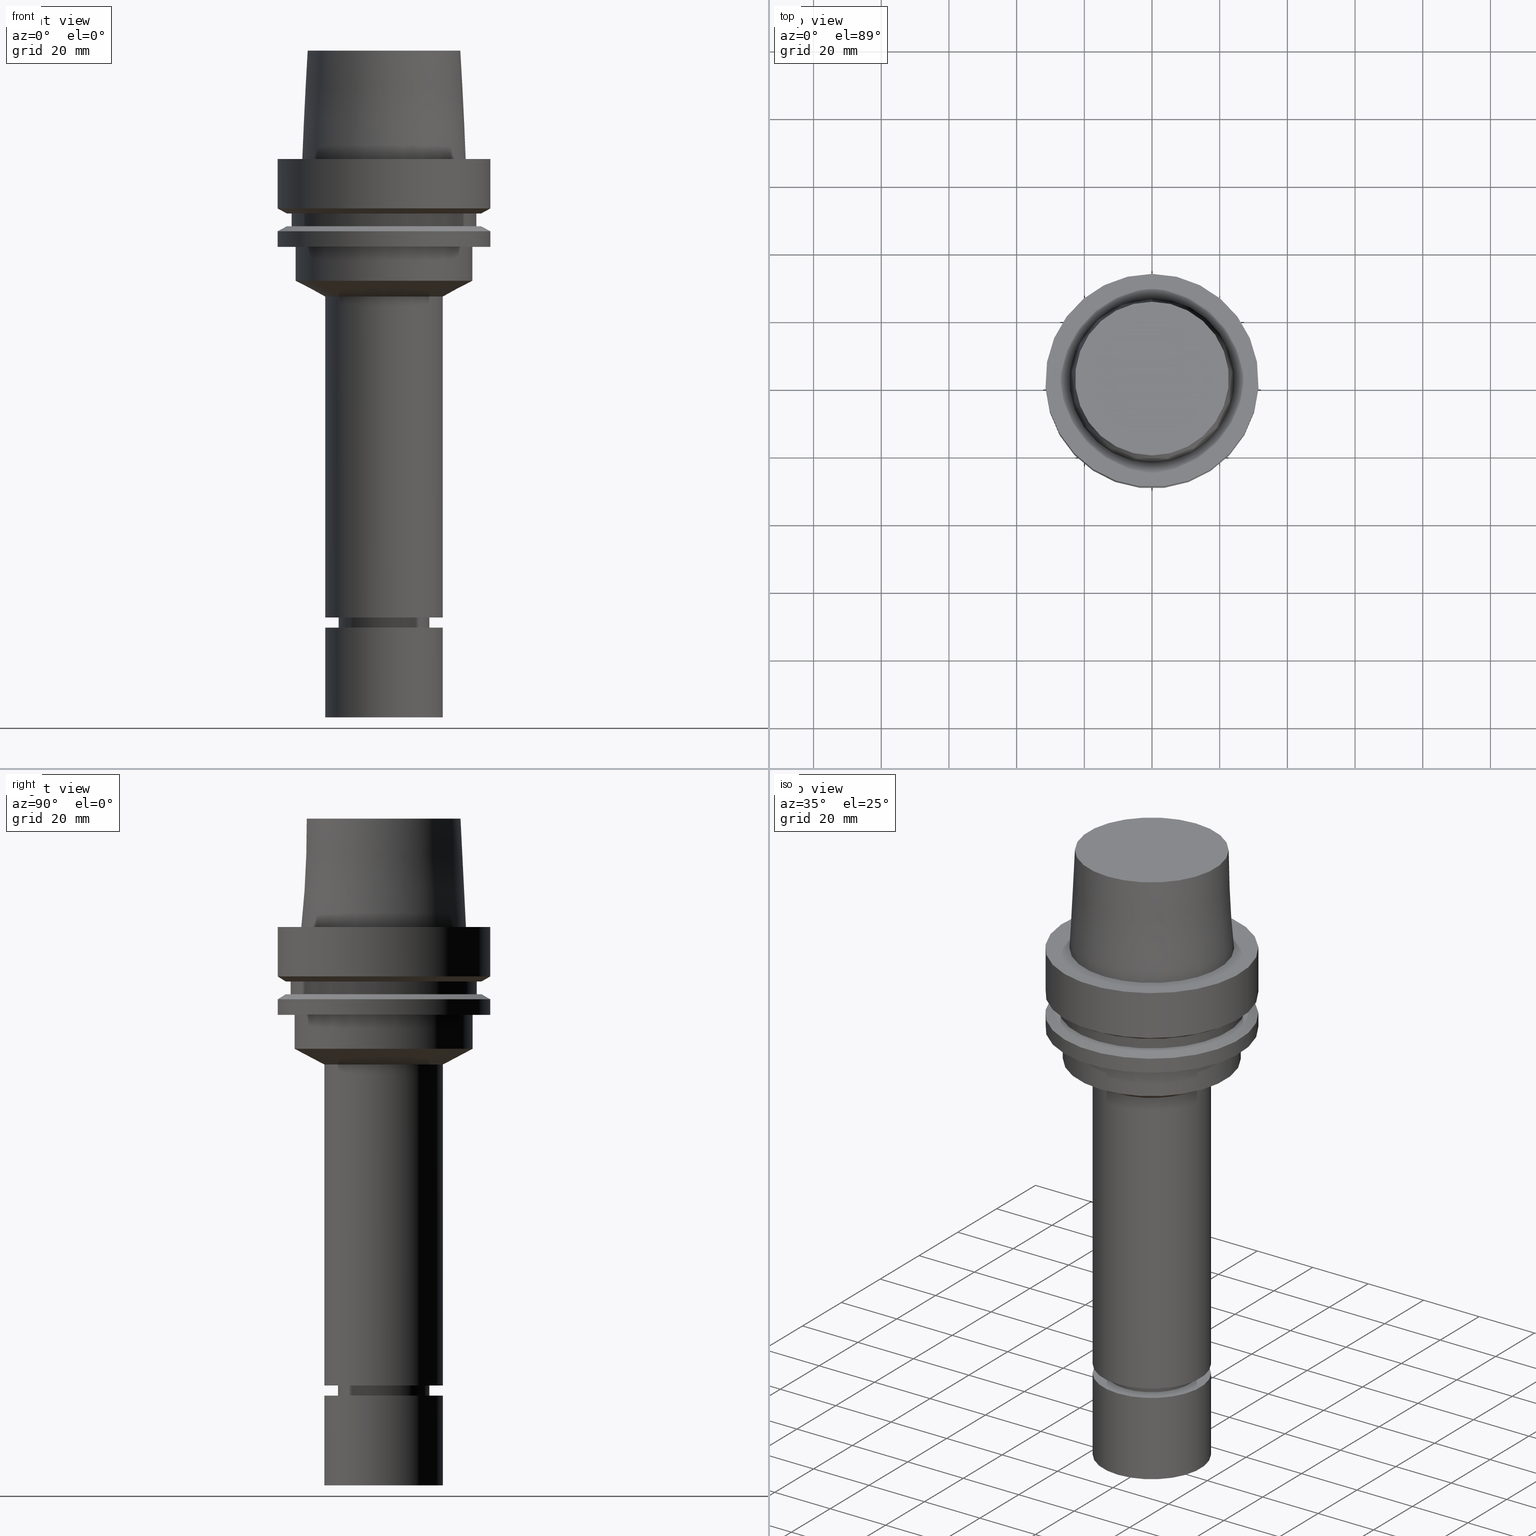
[diagram: canonical four-view strip — front | top / right | iso, engineering-drawing reading convention]
A machine part, canonical four-view strip (front | top / right | iso — engineering-drawing reading convention). The complete STEP part file that produces these views, byte-faithful:
ISO-10303-21;
HEADER;
FILE_DESCRIPTION((''),'1');
FILE_NAME('V:/90_\X2\53D65F9730C730FC30BF\X0\/00_\X2\6DE18DEF30C730FC30BF\X0\/ALL/HSK-BKUS\X2\52A05DE556F3\X0\_201801/HSK-A63-MEGAER/HSK-A63-MEGAER20-165NL.stp','2018-02-01T02:48:23',(''),(''),'Spatial Interop R21 SP3','Kubotek KeyCreator 2011 V10.0.2 (22737)',' ');
FILE_SCHEMA(('automotive_design'));
ENDSEC;
DATA;
#1=MECHANICAL_DESIGN_GEOMETRIC_PRESENTATION_REPRESENTATION(' ',(#14,#15,#16,#17,#18,#19,#20,#21,#22,#23,#24,#25,#26,#27,#28,#29,#30,#31,#32,#33,#34,#35,#36,#37,#38,#39,#40,#41,#42,#43,#44,#45,#46,#47,#48,#49,#50,#51,#52,#53,#54,#55,#56,#57,#58,#59),#10);
#2=PRODUCT_DEFINITION_CONTEXT('',#60,'design');
#3=APPLICATION_PROTOCOL_DEFINITION('INTERNATIONAL STANDARD','automotive_design',1994,#60);
#4=PRODUCT_CATEGORY_RELATIONSHIP('NONE','NONE',#61,#62);
#5=SHAPE_DEFINITION_REPRESENTATION(#63,#64);
#6=PRODUCT_DEFINITION_CONTEXT('',#65,'design');
#7=APPLICATION_PROTOCOL_DEFINITION('INTERNATIONAL STANDARD','automotive_design',1994,#65);
#8=PRODUCT_CATEGORY_RELATIONSHIP('NONE','NONE',#66,#67);
#9=SHAPE_DEFINITION_REPRESENTATION(#68,#69);
#10= (GEOMETRIC_REPRESENTATION_CONTEXT(3)GLOBAL_UNCERTAINTY_ASSIGNED_CONTEXT((#72))GLOBAL_UNIT_ASSIGNED_CONTEXT((#74,#75,#76))REPRESENTATION_CONTEXT('NONE','WORKSPACE'));
#14=STYLED_ITEM('',(#78,#79),#80);
#15=STYLED_ITEM('',(#81),#82);
#16=STYLED_ITEM('',(#83),#84);
#17=STYLED_ITEM('',(#85,#86),#87);
#18=STYLED_ITEM('',(#88),#89);
#19=STYLED_ITEM('',(#90),#91);
#20=STYLED_ITEM('',(#92,#93),#94);
#21=STYLED_ITEM('',(#95),#96);
#22=STYLED_ITEM('',(#97,#98),#99);
#23=STYLED_ITEM('',(#100,#101),#102);
#24=STYLED_ITEM('',(#103,#104),#105);
#25=STYLED_ITEM('',(#106),#107);
#26=STYLED_ITEM('',(#108),#109);
#27=STYLED_ITEM('',(#110,#111),#112);
#28=STYLED_ITEM('',(#113),#114);
#29=STYLED_ITEM('',(#115,#116),#117);
#30=STYLED_ITEM('',(#118,#119),#120);
#31=STYLED_ITEM('',(#121,#122),#123);
#32=STYLED_ITEM('',(#124,#125),#126);
#33=STYLED_ITEM('',(#127),#128);
#34=STYLED_ITEM('',(#129),#130);
#35=STYLED_ITEM('',(#131,#132),#133);
#36=STYLED_ITEM('',(#134),#135);
#37=STYLED_ITEM('',(#136,#137),#138);
#38=STYLED_ITEM('',(#139),#140);
#39=STYLED_ITEM('',(#141),#142);
#40=STYLED_ITEM('',(#143,#144),#145);
#41=STYLED_ITEM('',(#146,#147),#148);
#42=STYLED_ITEM('',(#149,#150),#151);
#43=STYLED_ITEM('',(#152,#153),#154);
#44=STYLED_ITEM('',(#155,#156),#157);
#45=STYLED_ITEM('',(#158),#159);
#46=STYLED_ITEM('',(#160),#161);
#47=STYLED_ITEM('',(#162),#163);
#48=STYLED_ITEM('',(#164,#165),#166);
#49=STYLED_ITEM('',(#167,#168),#169);
#50=STYLED_ITEM('',(#170),#171);
#51=STYLED_ITEM('',(#172),#173);
#52=STYLED_ITEM('',(#174),#175);
#53=STYLED_ITEM('',(#176),#177);
#54=STYLED_ITEM('',(#178,#179),#180);
#55=STYLED_ITEM('',(#181,#182),#183);
#56=STYLED_ITEM('',(#184),#185);
#57=STYLED_ITEM('',(#186,#187),#188);
#58=STYLED_ITEM('',(#189,#190),#191);
#59=STYLED_ITEM('',(#192,#193),#194);
#60=APPLICATION_CONTEXT(' ');
#61=PRODUCT_CATEGORY('part','NONE');
#62=PRODUCT_RELATED_PRODUCT_CATEGORY('detail',' ',(#195));
#63=PRODUCT_DEFINITION_SHAPE('NONE','NONE',#196);
#64=ADVANCED_BREP_SHAPE_REPRESENTATION('Unnamed[1]',(#180,#197),#10);
#65=APPLICATION_CONTEXT(' ');
#66=PRODUCT_CATEGORY('part','NONE');
#67=PRODUCT_RELATED_PRODUCT_CATEGORY('detail',' ',(#198));
#68=PRODUCT_DEFINITION_SHAPE('NONE','NONE',#199);
#69=ADVANCED_BREP_SHAPE_REPRESENTATION('Unnamed[1]',(#117,#200),#10);
#72=UNCERTAINTY_MEASURE_WITH_UNIT(LENGTH_MEASURE(1.0E-006),#74,'','');
#74= (CONVERSION_BASED_UNIT('MILLIMETRE',#203)LENGTH_UNIT()NAMED_UNIT(#206));
#75= (NAMED_UNIT(#208)PLANE_ANGLE_UNIT()SI_UNIT($,.RADIAN.));
#76= (NAMED_UNIT(#208)SOLID_ANGLE_UNIT()SI_UNIT($,.STERADIAN.));
#78=PRESENTATION_STYLE_ASSIGNMENT((#214));
#79=PRESENTATION_STYLE_ASSIGNMENT((#215));
#80=ADVANCED_FACE('Unnamed[1]',(#216,#217),#218,.T.);
#81=PRESENTATION_STYLE_ASSIGNMENT((#219));
#82=EDGE_CURVE('Unnamed[1]',#220,#220,#221,.T.);
#83=PRESENTATION_STYLE_ASSIGNMENT((#222));
#84=EDGE_CURVE('Unnamed[1]',#223,#223,#224,.T.);
#85=PRESENTATION_STYLE_ASSIGNMENT((#225));
#86=PRESENTATION_STYLE_ASSIGNMENT((#226));
#87=ADVANCED_FACE('Unnamed[1]',(#227),#228,.T.);
#88=PRESENTATION_STYLE_ASSIGNMENT((#229));
#89=EDGE_CURVE('Unnamed[1]',#230,#230,#231,.T.);
#90=PRESENTATION_STYLE_ASSIGNMENT((#232));
#91=EDGE_CURVE('Unnamed[1]',#233,#233,#234,.T.);
#92=PRESENTATION_STYLE_ASSIGNMENT((#235));
#93=PRESENTATION_STYLE_ASSIGNMENT((#236));
#94=ADVANCED_FACE('Unnamed[1]',(#237,#238),#239,.T.);
#95=PRESENTATION_STYLE_ASSIGNMENT((#240));
#96=EDGE_CURVE('Unnamed[1]',#241,#241,#242,.T.);
#97=PRESENTATION_STYLE_ASSIGNMENT((#243));
#98=PRESENTATION_STYLE_ASSIGNMENT((#244));
#99=ADVANCED_FACE('Unnamed[1]',(#245),#246,.T.);
#100=PRESENTATION_STYLE_ASSIGNMENT((#247));
#101=PRESENTATION_STYLE_ASSIGNMENT((#248));
#102=ADVANCED_FACE('Unnamed[1]',(#249,#250),#251,.T.);
#103=PRESENTATION_STYLE_ASSIGNMENT((#252));
#104=PRESENTATION_STYLE_ASSIGNMENT((#253));
#105=ADVANCED_FACE('Unnamed[1]',(#254,#255),#256,.T.);
#106=PRESENTATION_STYLE_ASSIGNMENT((#257));
#107=EDGE_CURVE('Unnamed[1]',#258,#258,#259,.T.);
#108=PRESENTATION_STYLE_ASSIGNMENT((#260));
#109=EDGE_CURVE('Unnamed[1]',#261,#261,#262,.T.);
#110=PRESENTATION_STYLE_ASSIGNMENT((#263));
#111=PRESENTATION_STYLE_ASSIGNMENT((#264));
#112=ADVANCED_FACE('Unnamed[1]',(#265,#266),#267,.T.);
#113=PRESENTATION_STYLE_ASSIGNMENT((#268));
#114=EDGE_CURVE('Unnamed[1]',#269,#269,#270,.T.);
#115=PRESENTATION_STYLE_ASSIGNMENT((#271));
#116=PRESENTATION_STYLE_ASSIGNMENT((#272));
#117=MANIFOLD_SOLID_BREP('Unnamed[1]',#273);
#118=PRESENTATION_STYLE_ASSIGNMENT((#274));
#119=PRESENTATION_STYLE_ASSIGNMENT((#275));
#120=ADVANCED_FACE('Unnamed[1]',(#276,#277),#278,.T.);
#121=PRESENTATION_STYLE_ASSIGNMENT((#279));
#122=PRESENTATION_STYLE_ASSIGNMENT((#280));
#123=ADVANCED_FACE('Unnamed[1]',(#281,#282),#283,.T.);
#124=PRESENTATION_STYLE_ASSIGNMENT((#284));
#125=PRESENTATION_STYLE_ASSIGNMENT((#285));
#126=ADVANCED_FACE('Unnamed[1]',(#286,#287),#288,.T.);
#127=PRESENTATION_STYLE_ASSIGNMENT((#289));
#128=EDGE_CURVE('Unnamed[1]',#290,#290,#291,.T.);
#129=PRESENTATION_STYLE_ASSIGNMENT((#292));
#130=EDGE_CURVE('Unnamed[1]',#293,#293,#294,.T.);
#131=PRESENTATION_STYLE_ASSIGNMENT((#295));
#132=PRESENTATION_STYLE_ASSIGNMENT((#296));
#133=ADVANCED_FACE('Unnamed[1]',(#297,#298),#299,.T.);
#134=PRESENTATION_STYLE_ASSIGNMENT((#300));
#135=EDGE_CURVE('Unnamed[1]',#301,#301,#302,.T.);
#136=PRESENTATION_STYLE_ASSIGNMENT((#303));
#137=PRESENTATION_STYLE_ASSIGNMENT((#304));
#138=ADVANCED_FACE('Unnamed[1]',(#305,#306),#307,.T.);
#139=PRESENTATION_STYLE_ASSIGNMENT((#308));
#140=EDGE_CURVE('Unnamed[1]',#309,#309,#310,.T.);
#141=PRESENTATION_STYLE_ASSIGNMENT((#311));
#142=EDGE_CURVE('Unnamed[1]',#312,#312,#313,.T.);
#143=PRESENTATION_STYLE_ASSIGNMENT((#314));
#144=PRESENTATION_STYLE_ASSIGNMENT((#315));
#145=ADVANCED_FACE('Unnamed[1]',(#316,#317),#318,.T.);
#146=PRESENTATION_STYLE_ASSIGNMENT((#319));
#147=PRESENTATION_STYLE_ASSIGNMENT((#320));
#148=ADVANCED_FACE('Unnamed[1]',(#321,#322),#323,.T.);
#149=PRESENTATION_STYLE_ASSIGNMENT((#324));
#150=PRESENTATION_STYLE_ASSIGNMENT((#325));
#151=ADVANCED_FACE('Unnamed[1]',(#326,#327),#328,.T.);
#152=PRESENTATION_STYLE_ASSIGNMENT((#329));
#153=PRESENTATION_STYLE_ASSIGNMENT((#330));
#154=ADVANCED_FACE('Unnamed[1]',(#331,#332),#333,.T.);
#155=PRESENTATION_STYLE_ASSIGNMENT((#334));
#156=PRESENTATION_STYLE_ASSIGNMENT((#335));
#157=ADVANCED_FACE('Unnamed[1]',(#336,#337),#338,.T.);
#158=PRESENTATION_STYLE_ASSIGNMENT((#339));
#159=EDGE_CURVE('Unnamed[1]',#340,#340,#341,.T.);
#160=PRESENTATION_STYLE_ASSIGNMENT((#342));
#161=EDGE_CURVE('Unnamed[1]',#343,#343,#344,.T.);
#162=PRESENTATION_STYLE_ASSIGNMENT((#345));
#163=EDGE_CURVE('Unnamed[1]',#346,#346,#347,.T.);
#164=PRESENTATION_STYLE_ASSIGNMENT((#348));
#165=PRESENTATION_STYLE_ASSIGNMENT((#349));
#166=ADVANCED_FACE('Unnamed[1]',(#350,#351),#352,.T.);
#167=PRESENTATION_STYLE_ASSIGNMENT((#353));
#168=PRESENTATION_STYLE_ASSIGNMENT((#354));
#169=ADVANCED_FACE('Unnamed[1]',(#355,#356),#357,.T.);
#170=PRESENTATION_STYLE_ASSIGNMENT((#358));
#171=EDGE_CURVE('Unnamed[1]',#359,#359,#360,.T.);
#172=PRESENTATION_STYLE_ASSIGNMENT((#361));
#173=EDGE_CURVE('Unnamed[1]',#362,#362,#363,.T.);
#174=PRESENTATION_STYLE_ASSIGNMENT((#364));
#175=EDGE_CURVE('Unnamed[1]',#365,#365,#366,.T.);
#176=PRESENTATION_STYLE_ASSIGNMENT((#367));
#177=EDGE_CURVE('Unnamed[1]',#368,#368,#369,.T.);
#178=PRESENTATION_STYLE_ASSIGNMENT((#370));
#179=PRESENTATION_STYLE_ASSIGNMENT((#371));
#180=MANIFOLD_SOLID_BREP('Unnamed[1]',#372);
#181=PRESENTATION_STYLE_ASSIGNMENT((#373));
#182=PRESENTATION_STYLE_ASSIGNMENT((#374));
#183=ADVANCED_FACE('Unnamed[1]',(#375,#376),#377,.T.);
#184=PRESENTATION_STYLE_ASSIGNMENT((#378));
#185=EDGE_CURVE('Unnamed[1]',#379,#379,#380,.T.);
#186=PRESENTATION_STYLE_ASSIGNMENT((#381));
#187=PRESENTATION_STYLE_ASSIGNMENT((#382));
#188=ADVANCED_FACE('Unnamed[1]',(#383),#384,.T.);
#189=PRESENTATION_STYLE_ASSIGNMENT((#385));
#190=PRESENTATION_STYLE_ASSIGNMENT((#386));
#191=ADVANCED_FACE('Unnamed[1]',(#387,#388),#389,.T.);
#192=PRESENTATION_STYLE_ASSIGNMENT((#390));
#193=PRESENTATION_STYLE_ASSIGNMENT((#391));
#194=ADVANCED_FACE('Unnamed[1]',(#392),#393,.T.);
#195=PRODUCT('Unnamed[1]','Unnamed[1]','PART-Unnamed[1]-DESC',(#394));
#196=PRODUCT_DEFINITION('NONE','NONE',#395,#2);
#197=AXIS2_PLACEMENT_3D('',#396,#397,#398);
#198=PRODUCT('Unnamed[1]','Unnamed[1]','PART-Unnamed[1]-DESC',(#399));
#199=PRODUCT_DEFINITION('NONE','NONE',#400,#6);
#200=AXIS2_PLACEMENT_3D('',#401,#402,#403);
#203=LENGTH_MEASURE_WITH_UNIT(LENGTH_MEASURE(1.0),#404);
#206=DIMENSIONAL_EXPONENTS(1.0,0.0,0.0,0.0,0.0,0.0,0.0);
#208=DIMENSIONAL_EXPONENTS(0.0,0.0,0.0,0.0,0.0,0.0,0.0);
#214=SURFACE_STYLE_USAGE(.BOTH.,#405);
#215=CURVE_STYLE('',#406,POSITIVE_LENGTH_MEASURE(1000.0),#407);
#216=FACE_BOUND('',#408,.T.);
#217=FACE_BOUND('',#409,.T.);
#218=CYLINDRICAL_SURFACE('',#410,31.4999999999999);
#219=CURVE_STYLE('',#411,POSITIVE_LENGTH_MEASURE(1000.0),#412);
#220=VERTEX_POINT('',#413);
#221=CIRCLE('',#414,28.8975952641919);
#222=CURVE_STYLE('',#415,POSITIVE_LENGTH_MEASURE(1000.0),#416);
#223=VERTEX_POINT('',#417);
#224=CIRCLE('',#418,17.5);
#225=SURFACE_STYLE_USAGE(.BOTH.,#419);
#226=CURVE_STYLE('',#420,POSITIVE_LENGTH_MEASURE(1000.0),#421);
#227=FACE_OUTER_BOUND('',#422,.T.);
#228=PLANE('',#423);
#229=CURVE_STYLE('',#424,POSITIVE_LENGTH_MEASURE(1000.0),#425);
#230=VERTEX_POINT('',#426);
#231=CIRCLE('',#427,27.5);
#232=CURVE_STYLE('',#428,POSITIVE_LENGTH_MEASURE(1000.0),#429);
#233=VERTEX_POINT('',#430);
#234=CIRCLE('',#431,31.5000000000001);
#235=SURFACE_STYLE_USAGE(.BOTH.,#432);
#236=CURVE_STYLE('',#433,POSITIVE_LENGTH_MEASURE(1000.0),#434);
#237=FACE_BOUND('',#435,.T.);
#238=FACE_BOUND('',#436,.T.);
#239=CYLINDRICAL_SURFACE('',#437,13.4999999999956);
#240=CURVE_STYLE('',#438,POSITIVE_LENGTH_MEASURE(1000.0),#439);
#241=VERTEX_POINT('',#440);
#242=CIRCLE('',#441,27.4999999999989);
#243=SURFACE_STYLE_USAGE(.BOTH.,#442);
#244=CURVE_STYLE('',#443,POSITIVE_LENGTH_MEASURE(1000.0),#444);
#245=FACE_OUTER_BOUND('',#445,.T.);
#246=PLANE('',#446);
#247=SURFACE_STYLE_USAGE(.BOTH.,#447);
#248=CURVE_STYLE('',#448,POSITIVE_LENGTH_MEASURE(1000.0),#449);
#249=FACE_BOUND('',#450,.T.);
#250=FACE_BOUND('',#451,.T.);
#251=CYLINDRICAL_SURFACE('',#452,17.5);
#252=SURFACE_STYLE_USAGE(.BOTH.,#453);
#253=CURVE_STYLE('',#454,POSITIVE_LENGTH_MEASURE(1000.0),#455);
#254=FACE_BOUND('',#456,.T.);
#255=FACE_OUTER_BOUND('',#457,.T.);
#256=PLANE('',#458);
#257=CURVE_STYLE('',#459,POSITIVE_LENGTH_MEASURE(1000.0),#460);
#258=VERTEX_POINT('',#461);
#259=CIRCLE('',#462,17.4999999999997);
#260=CURVE_STYLE('',#463,POSITIVE_LENGTH_MEASURE(1000.0),#464);
#261=VERTEX_POINT('',#465);
#262=CIRCLE('',#466,28.8975952641919);
#263=SURFACE_STYLE_USAGE(.BOTH.,#467);
#264=CURVE_STYLE('',#468,POSITIVE_LENGTH_MEASURE(1000.0),#469);
#265=FACE_BOUND('',#470,.T.);
#266=FACE_BOUND('',#471,.T.);
#267=CYLINDRICAL_SURFACE('',#472,26.3);
#268=CURVE_STYLE('',#473,POSITIVE_LENGTH_MEASURE(1000.0),#474);
#269=VERTEX_POINT('',#475);
#270=CIRCLE('',#476,11.3999999999978);
#271=SURFACE_STYLE_USAGE(.BOTH.,#477);
#272=CURVE_STYLE('',#478,POSITIVE_LENGTH_MEASURE(1000.0),#479);
#273=CLOSED_SHELL('',(#99,#188,#102));
#274=SURFACE_STYLE_USAGE(.BOTH.,#480);
#275=CURVE_STYLE('',#481,POSITIVE_LENGTH_MEASURE(1000.0),#482);
#276=FACE_BOUND('',#483,.T.);
#277=FACE_OUTER_BOUND('',#484,.T.);
#278=PLANE('',#485);
#279=SURFACE_STYLE_USAGE(.BOTH.,#486);
#280=CURVE_STYLE('',#487,POSITIVE_LENGTH_MEASURE(1000.0),#488);
#281=FACE_BOUND('',#489,.T.);
#282=FACE_BOUND('',#490,.T.);
#283=CONICAL_SURFACE('',#491,13.0000000000002,1.04719755119471);
#284=SURFACE_STYLE_USAGE(.BOTH.,#492);
#285=CURVE_STYLE('',#493,POSITIVE_LENGTH_MEASURE(1000.0),#494);
#286=FACE_BOUND('',#495,.T.);
#287=FACE_BOUND('',#496,.T.);
#288=CONICAL_SURFACE('',#497,23.515,0.0499583957219433);
#289=CURVE_STYLE('',#498,POSITIVE_LENGTH_MEASURE(1000.0),#499);
#290=VERTEX_POINT('',#500);
#291=CIRCLE('',#501,13.4999999999908);
#292=CURVE_STYLE('',#502,POSITIVE_LENGTH_MEASURE(1000.0),#503);
#293=VERTEX_POINT('',#504);
#294=CIRCLE('',#505,26.3);
#295=SURFACE_STYLE_USAGE(.BOTH.,#506);
#296=CURVE_STYLE('',#507,POSITIVE_LENGTH_MEASURE(1000.0),#508);
#297=FACE_BOUND('',#509,.T.);
#298=FACE_BOUND('',#510,.T.);
#299=CONICAL_SURFACE('',#511,30.1987976320959,1.04719755119657);
#300=CURVE_STYLE('',#512,POSITIVE_LENGTH_MEASURE(1000.0),#513);
#301=VERTEX_POINT('',#514);
#302=CIRCLE('',#515,17.5);
#303=SURFACE_STYLE_USAGE(.BOTH.,#516);
#304=CURVE_STYLE('',#517,POSITIVE_LENGTH_MEASURE(1000.0),#518);
#305=FACE_BOUND('',#519,.T.);
#306=FACE_BOUND('',#520,.T.);
#307=CYLINDRICAL_SURFACE('',#521,12.4999999999999);
#308=CURVE_STYLE('',#522,POSITIVE_LENGTH_MEASURE(1000.0),#523);
#309=VERTEX_POINT('',#524);
#310=CIRCLE('',#525,12.4999999999998);
#311=CURVE_STYLE('',#526,POSITIVE_LENGTH_MEASURE(1000.0),#527);
#312=VERTEX_POINT('',#528);
#313=CIRCLE('',#529,31.5);
#314=SURFACE_STYLE_USAGE(.BOTH.,#530);
#315=CURVE_STYLE('',#531,POSITIVE_LENGTH_MEASURE(1000.0),#532);
#316=FACE_BOUND('',#533,.T.);
#317=FACE_BOUND('',#534,.T.);
#318=CONICAL_SURFACE('',#535,30.1987976320959,1.04719755119657);
#319=SURFACE_STYLE_USAGE(.BOTH.,#536);
#320=CURVE_STYLE('',#537,POSITIVE_LENGTH_MEASURE(1000.0),#538);
#321=FACE_BOUND('',#539,.T.);
#322=FACE_BOUND('',#540,.T.);
#323=CONICAL_SURFACE('',#541,11.9499999999988,0.523598775598652);
#324=SURFACE_STYLE_USAGE(.BOTH.,#542);
#325=CURVE_STYLE('',#543,POSITIVE_LENGTH_MEASURE(1000.0),#544);
#326=FACE_OUTER_BOUND('',#545,.T.);
#327=FACE_BOUND('',#546,.T.);
#328=PLANE('',#547);
#329=SURFACE_STYLE_USAGE(.BOTH.,#548);
#330=CURVE_STYLE('',#549,POSITIVE_LENGTH_MEASURE(1000.0),#550);
#331=FACE_BOUND('',#551,.T.);
#332=FACE_BOUND('',#552,.T.);
#333=CYLINDRICAL_SURFACE('',#553,17.4999999999998);
#334=SURFACE_STYLE_USAGE(.BOTH.,#554);
#335=CURVE_STYLE('',#555,POSITIVE_LENGTH_MEASURE(1000.0),#556);
#336=FACE_BOUND('',#557,.T.);
#337=FACE_BOUND('',#558,.T.);
#338=CYLINDRICAL_SURFACE('',#559,31.5);
#339=CURVE_STYLE('',#560,POSITIVE_LENGTH_MEASURE(1000.0),#561);
#340=VERTEX_POINT('',#562);
#341=CIRCLE('',#563,13.5000000000005);
#342=CURVE_STYLE('',#564,POSITIVE_LENGTH_MEASURE(1000.0),#565);
#343=VERTEX_POINT('',#566);
#344=CIRCLE('',#567,17.4999999999999);
#345=CURVE_STYLE('',#568,POSITIVE_LENGTH_MEASURE(1000.0),#569);
#346=VERTEX_POINT('',#570);
#347=CIRCLE('',#571,26.3);
#348=SURFACE_STYLE_USAGE(.BOTH.,#572);
#349=CURVE_STYLE('',#573,POSITIVE_LENGTH_MEASURE(1000.0),#574);
#350=FACE_BOUND('',#575,.T.);
#351=FACE_BOUND('',#576,.T.);
#352=CONICAL_SURFACE('',#577,21.8999999999998,1.08379854829247);
#353=SURFACE_STYLE_USAGE(.BOTH.,#578);
#354=CURVE_STYLE('',#579,POSITIVE_LENGTH_MEASURE(1000.0),#580);
#355=FACE_OUTER_BOUND('',#581,.T.);
#356=FACE_BOUND('',#582,.T.);
#357=PLANE('',#583);
#358=CURVE_STYLE('',#584,POSITIVE_LENGTH_MEASURE(1000.0),#585);
#359=VERTEX_POINT('',#586);
#360=CIRCLE('',#587,31.5);
#361=CURVE_STYLE('',#588,POSITIVE_LENGTH_MEASURE(1000.0),#589);
#362=VERTEX_POINT('',#590);
#363=CIRCLE('',#591,12.4999999999999);
#364=CURVE_STYLE('',#592,POSITIVE_LENGTH_MEASURE(1000.0),#593);
#365=VERTEX_POINT('',#594);
#366=CIRCLE('',#595,31.4999999999998);
#367=CURVE_STYLE('',#596,POSITIVE_LENGTH_MEASURE(1000.0),#597);
#368=VERTEX_POINT('',#598);
#369=CIRCLE('',#599,24.315);
#370=SURFACE_STYLE_USAGE(.BOTH.,#600);
#371=CURVE_STYLE('',#601,POSITIVE_LENGTH_MEASURE(1000.0),#602);
#372=CLOSED_SHELL('',(#194,#148,#138,#123,#94,#191,#154,#166,#112,#169,#80,#133,#120,#183,#151,#145,#157,#105,#126,#87));
#373=SURFACE_STYLE_USAGE(.BOTH.,#603);
#374=CURVE_STYLE('',#604,POSITIVE_LENGTH_MEASURE(1000.0),#605);
#375=FACE_BOUND('',#606,.T.);
#376=FACE_BOUND('',#607,.T.);
#377=CYLINDRICAL_SURFACE('',#608,27.4999999999994);
#378=CURVE_STYLE('',#609,POSITIVE_LENGTH_MEASURE(1000.0),#610);
#379=VERTEX_POINT('',#611);
#380=CIRCLE('',#612,22.715);
#381=SURFACE_STYLE_USAGE(.BOTH.,#613);
#382=CURVE_STYLE('',#614,POSITIVE_LENGTH_MEASURE(1000.0),#615);
#383=FACE_OUTER_BOUND('',#616,.T.);
#384=PLANE('',#617);
#385=SURFACE_STYLE_USAGE(.BOTH.,#618);
#386=CURVE_STYLE('',#619,POSITIVE_LENGTH_MEASURE(1000.0),#620);
#387=FACE_OUTER_BOUND('',#621,.T.);
#388=FACE_BOUND('',#622,.T.);
#389=PLANE('',#623);
#390=SURFACE_STYLE_USAGE(.BOTH.,#624);
#391=CURVE_STYLE('',#625,POSITIVE_LENGTH_MEASURE(1000.0),#626);
#392=FACE_OUTER_BOUND('',#627,.T.);
#393=PLANE('',#628);
#394=PRODUCT_CONTEXT('',#60,'mechanical');
#395=PRODUCT_DEFINITION_FORMATION_WITH_SPECIFIED_SOURCE(' ','NONE',#195,.NOT_KNOWN.);
#396=CARTESIAN_POINT('',(0.0,0.0,0.0));
#397=DIRECTION('',(0.0,0.0,1.0));
#398=DIRECTION('',(1.0,0.0,0.0));
#399=PRODUCT_CONTEXT('',#65,'mechanical');
#400=PRODUCT_DEFINITION_FORMATION_WITH_SPECIFIED_SOURCE(' ','NONE',#198,.NOT_KNOWN.);
#401=CARTESIAN_POINT('',(0.0,0.0,0.0));
#402=DIRECTION('',(0.0,0.0,1.0));
#403=DIRECTION('',(1.0,0.0,0.0));
#404= (NAMED_UNIT(#206)LENGTH_UNIT()SI_UNIT(.MILLI.,.METRE.));
#405=SURFACE_SIDE_STYLE('',(#630));
#406=DRAUGHTING_PRE_DEFINED_CURVE_FONT('continuous');
#407=COLOUR_RGB('',0.0,1.0,0.0);
#408=EDGE_LOOP('',(#631));
#409=EDGE_LOOP('',(#632));
#410=AXIS2_PLACEMENT_3D('',#633,#634,#635);
#411=DRAUGHTING_PRE_DEFINED_CURVE_FONT('continuous');
#412=COLOUR_RGB('',0.0,1.0,0.0);
#413=CARTESIAN_POINT('',(9.87371481812551E-016,28.8975952641919,-16.125));
#414=AXIS2_PLACEMENT_3D('',#636,#637,#638);
#415=DRAUGHTING_PRE_DEFINED_CURVE_FONT('continuous');
#416=COLOUR_RGB('',0.0,1.0,0.0);
#417=CARTESIAN_POINT('',(8.48068001842678E-015,17.5,-138.500015258789));
#418=AXIS2_PLACEMENT_3D('',#639,#640,#641);
#419=SURFACE_SIDE_STYLE('',(#642));
#420=DRAUGHTING_PRE_DEFINED_CURVE_FONT('continuous');
#421=COLOUR_RGB('',0.0,1.0,0.0);
#422=EDGE_LOOP('',(#643));
#423=AXIS2_PLACEMENT_3D('',#644,#645,#646);
#424=DRAUGHTING_PRE_DEFINED_CURVE_FONT('continuous');
#425=COLOUR_RGB('',0.0,1.0,0.0);
#426=CARTESIAN_POINT('',(9.87371481812537E-016,27.5,-16.1249999999997));
#427=AXIS2_PLACEMENT_3D('',#647,#648,#649);
#428=DRAUGHTING_PRE_DEFINED_CURVE_FONT('continuous');
#429=COLOUR_RGB('',0.0,1.0,0.0);
#430=CARTESIAN_POINT('',(-3.88267476788467E-031,31.5000000000001,3.85763741731417E-015));
#431=AXIS2_PLACEMENT_3D('',#650,#651,#652);
#432=SURFACE_SIDE_STYLE('',(#653));
#433=DRAUGHTING_PRE_DEFINED_CURVE_FONT('continuous');
#434=COLOUR_RGB('',0.0,1.0,0.0);
#435=EDGE_LOOP('',(#654));
#436=EDGE_LOOP('',(#655));
#437=AXIS2_PLACEMENT_3D('',#656,#657,#658);
#438=DRAUGHTING_PRE_DEFINED_CURVE_FONT('continuous');
#439=COLOUR_RGB('',0.0,1.0,0.0);
#440=CARTESIAN_POINT('',(1.21699275665276E-015,27.4999999999989,-19.8750000000013));
#441=AXIS2_PLACEMENT_3D('',#659,#660,#661);
#442=SURFACE_SIDE_STYLE('',(#662));
#443=DRAUGHTING_PRE_DEFINED_CURVE_FONT('continuous');
#444=COLOUR_RGB('',0.0,1.0,0.0);
#445=EDGE_LOOP('',(#663));
#446=AXIS2_PLACEMENT_3D('',#664,#665,#666);
#447=SURFACE_SIDE_STYLE('',(#667));
#448=DRAUGHTING_PRE_DEFINED_CURVE_FONT('continuous');
#449=COLOUR_RGB('',0.0,1.0,0.0);
#450=EDGE_LOOP('',(#668));
#451=EDGE_LOOP('',(#669));
#452=AXIS2_PLACEMENT_3D('',#670,#671,#672);
#453=SURFACE_SIDE_STYLE('',(#673));
#454=DRAUGHTING_PRE_DEFINED_CURVE_FONT('continuous');
#455=COLOUR_RGB('',0.0,1.0,0.0);
#456=EDGE_LOOP('',(#674));
#457=EDGE_LOOP('',(#675));
#458=AXIS2_PLACEMENT_3D('',#676,#677,#678);
#459=DRAUGHTING_PRE_DEFINED_CURVE_FONT('continuous');
#460=COLOUR_RGB('',0.0,1.0,0.0);
#461=CARTESIAN_POINT('',(2.48970289259618E-015,17.4999999999997,-40.6599338573311));
#462=AXIS2_PLACEMENT_3D('',#679,#680,#681);
#463=DRAUGHTING_PRE_DEFINED_CURVE_FONT('continuous');
#464=COLOUR_RGB('',0.0,1.0,0.0);
#465=CARTESIAN_POINT('',(1.21699275665268E-015,28.8975952641919,-19.875));
#466=AXIS2_PLACEMENT_3D('',#682,#683,#684);
#467=SURFACE_SIDE_STYLE('',(#685));
#468=DRAUGHTING_PRE_DEFINED_CURVE_FONT('continuous');
#469=COLOUR_RGB('',0.0,1.0,0.0);
#470=EDGE_LOOP('',(#686));
#471=EDGE_LOOP('',(#687));
#472=AXIS2_PLACEMENT_3D('',#688,#689,#690);
#473=DRAUGHTING_PRE_DEFINED_CURVE_FONT('continuous');
#474=COLOUR_RGB('',0.0,1.0,0.0);
#475=CARTESIAN_POINT('',(9.50325916138347E-015,11.3999999999978,-155.2));
#476=AXIS2_PLACEMENT_3D('',#691,#692,#693);
#477=SURFACE_SIDE_STYLE('',(#694));
#478=DRAUGHTING_PRE_DEFINED_CURVE_FONT('continuous');
#479=COLOUR_RGB('',0.0,1.0,0.0);
#480=SURFACE_SIDE_STYLE('',(#695));
#481=DRAUGHTING_PRE_DEFINED_CURVE_FONT('continuous');
#482=COLOUR_RGB('',0.0,1.0,0.0);
#483=EDGE_LOOP('',(#696));
#484=EDGE_LOOP('',(#697));
#485=AXIS2_PLACEMENT_3D('',#698,#699,#700);
#486=SURFACE_SIDE_STYLE('',(#701));
#487=DRAUGHTING_PRE_DEFINED_CURVE_FONT('continuous');
#488=COLOUR_RGB('',0.0,1.0,0.0);
#489=EDGE_LOOP('',(#702));
#490=EDGE_LOOP('',(#703));
#491=AXIS2_PLACEMENT_3D('',#704,#705,#706);
#492=SURFACE_SIDE_STYLE('',(#707));
#493=DRAUGHTING_PRE_DEFINED_CURVE_FONT('continuous');
#494=COLOUR_RGB('',0.0,1.0,0.0);
#495=EDGE_LOOP('',(#708));
#496=EDGE_LOOP('',(#709));
#497=AXIS2_PLACEMENT_3D('',#710,#711,#712);
#498=DRAUGHTING_PRE_DEFINED_CURVE_FONT('continuous');
#499=COLOUR_RGB('',0.0,1.0,0.0);
#500=CARTESIAN_POINT('',(8.29698206422331E-015,13.4999999999908,-135.5));
#501=AXIS2_PLACEMENT_3D('',#713,#714,#715);
#502=DRAUGHTING_PRE_DEFINED_CURVE_FONT('continuous');
#503=COLOUR_RGB('',0.0,1.0,0.0);
#504=CARTESIAN_POINT('',(1.59204083889154E-015,26.3,-25.9999999999997));
#505=AXIS2_PLACEMENT_3D('',#716,#717,#718);
#506=SURFACE_SIDE_STYLE('',(#719));
#507=DRAUGHTING_PRE_DEFINED_CURVE_FONT('continuous');
#508=COLOUR_RGB('',0.0,1.0,0.0);
#509=EDGE_LOOP('',(#720));
#510=EDGE_LOOP('',(#721));
#511=AXIS2_PLACEMENT_3D('',#722,#723,#724);
#512=DRAUGHTING_PRE_DEFINED_CURVE_FONT('continuous');
#513=COLOUR_RGB('',0.0,1.0,0.0);
#514=CARTESIAN_POINT('',(1.01033360929657E-014,17.5,-165.0));
#515=AXIS2_PLACEMENT_3D('',#725,#726,#727);
#516=SURFACE_SIDE_STYLE('',(#728));
#517=DRAUGHTING_PRE_DEFINED_CURVE_FONT('continuous');
#518=COLOUR_RGB('',0.0,1.0,0.0);
#519=EDGE_LOOP('',(#729));
#520=EDGE_LOOP('',(#730));
#521=AXIS2_PLACEMENT_3D('',#731,#732,#733);
#522=DRAUGHTING_PRE_DEFINED_CURVE_FONT('continuous');
#523=COLOUR_RGB('',0.0,1.0,0.0);
#524=CARTESIAN_POINT('',(9.38659588512362E-015,12.4999999999998,-153.294744111673));
#525=AXIS2_PLACEMENT_3D('',#734,#735,#736);
#526=DRAUGHTING_PRE_DEFINED_CURVE_FONT('continuous');
#527=COLOUR_RGB('',0.0,1.0,0.0);
#528=CARTESIAN_POINT('',(1.30899429078397E-015,31.5,-21.3774990747592));
#529=AXIS2_PLACEMENT_3D('',#737,#738,#739);
#530=SURFACE_SIDE_STYLE('',(#740));
#531=DRAUGHTING_PRE_DEFINED_CURVE_FONT('continuous');
#532=COLOUR_RGB('',0.0,1.0,0.0);
#533=EDGE_LOOP('',(#741));
#534=EDGE_LOOP('',(#742));
#535=AXIS2_PLACEMENT_3D('',#743,#744,#745);
#536=SURFACE_SIDE_STYLE('',(#746));
#537=DRAUGHTING_PRE_DEFINED_CURVE_FONT('continuous');
#538=COLOUR_RGB('',0.0,1.0,0.0);
#539=EDGE_LOOP('',(#747));
#540=EDGE_LOOP('',(#748));
#541=AXIS2_PLACEMENT_3D('',#749,#750,#751);
#542=SURFACE_SIDE_STYLE('',(#752));
#543=DRAUGHTING_PRE_DEFINED_CURVE_FONT('continuous');
#544=COLOUR_RGB('',0.0,1.0,0.0);
#545=EDGE_LOOP('',(#753));
#546=EDGE_LOOP('',(#754));
#547=AXIS2_PLACEMENT_3D('',#755,#756,#757);
#548=SURFACE_SIDE_STYLE('',(#758));
#549=DRAUGHTING_PRE_DEFINED_CURVE_FONT('continuous');
#550=COLOUR_RGB('',0.0,1.0,0.0);
#551=EDGE_LOOP('',(#759));
#552=EDGE_LOOP('',(#760));
#553=AXIS2_PLACEMENT_3D('',#761,#762,#763);
#554=SURFACE_SIDE_STYLE('',(#764));
#555=DRAUGHTING_PRE_DEFINED_CURVE_FONT('continuous');
#556=COLOUR_RGB('',0.0,1.0,0.0);
#557=EDGE_LOOP('',(#765));
#558=EDGE_LOOP('',(#766));
#559=AXIS2_PLACEMENT_3D('',#767,#768,#769);
#560=DRAUGHTING_PRE_DEFINED_CURVE_FONT('continuous');
#561=COLOUR_RGB('',0.0,1.0,0.0);
#562=CARTESIAN_POINT('',(8.65349663972404E-015,13.5000000000005,-141.322324865405));
#563=AXIS2_PLACEMENT_3D('',#770,#771,#772);
#564=DRAUGHTING_PRE_DEFINED_CURVE_FONT('continuous');
#565=COLOUR_RGB('',0.0,1.0,0.0);
#566=CARTESIAN_POINT('',(8.29698206422331E-015,17.4999999999999,-135.5));
#567=AXIS2_PLACEMENT_3D('',#773,#774,#775);
#568=DRAUGHTING_PRE_DEFINED_CURVE_FONT('continuous');
#569=COLOUR_RGB('',0.0,1.0,0.0);
#570=CARTESIAN_POINT('',(2.20436423846525E-015,26.3,-36.0000000000003));
#571=AXIS2_PLACEMENT_3D('',#776,#777,#778);
#572=SURFACE_SIDE_STYLE('',(#779));
#573=DRAUGHTING_PRE_DEFINED_CURVE_FONT('continuous');
#574=COLOUR_RGB('',0.0,1.0,0.0);
#575=EDGE_LOOP('',(#780));
#576=EDGE_LOOP('',(#781));
#577=AXIS2_PLACEMENT_3D('',#782,#783,#784);
#578=SURFACE_SIDE_STYLE('',(#785));
#579=DRAUGHTING_PRE_DEFINED_CURVE_FONT('continuous');
#580=COLOUR_RGB('',0.0,1.0,0.0);
#581=EDGE_LOOP('',(#786));
#582=EDGE_LOOP('',(#787));
#583=AXIS2_PLACEMENT_3D('',#788,#789,#790);
#584=DRAUGHTING_PRE_DEFINED_CURVE_FONT('continuous');
#585=COLOUR_RGB('',0.0,1.0,0.0);
#586=CARTESIAN_POINT('',(8.95369947681261E-016,31.5,-14.6225009252407));
#587=AXIS2_PLACEMENT_3D('',#791,#792,#793);
#588=DRAUGHTING_PRE_DEFINED_CURVE_FONT('continuous');
#589=COLOUR_RGB('',0.0,1.0,0.0);
#590=CARTESIAN_POINT('',(8.68884914768171E-015,12.4999999999999,-141.899675134598));
#591=AXIS2_PLACEMENT_3D('',#794,#795,#796);
#592=DRAUGHTING_PRE_DEFINED_CURVE_FONT('continuous');
#593=COLOUR_RGB('',0.0,1.0,0.0);
#594=CARTESIAN_POINT('',(1.59204083889155E-015,31.4999999999998,-25.9999999999999));
#595=AXIS2_PLACEMENT_3D('',#797,#798,#799);
#596=DRAUGHTING_PRE_DEFINED_CURVE_FONT('continuous');
#597=COLOUR_RGB('',0.0,1.0,0.0);
#598=CARTESIAN_POINT('',(-2.99705514225764E-031,24.315,2.97772869212679E-015));
#599=AXIS2_PLACEMENT_3D('',#800,#801,#802);
#600=SURFACE_SIDE_STYLE('',(#803));
#601=DRAUGHTING_PRE_DEFINED_CURVE_FONT('continuous');
#602=COLOUR_RGB('',0.0,1.0,0.0);
#603=SURFACE_SIDE_STYLE('',(#804));
#604=DRAUGHTING_PRE_DEFINED_CURVE_FONT('continuous');
#605=COLOUR_RGB('',0.0,1.0,0.0);
#606=EDGE_LOOP('',(#805));
#607=EDGE_LOOP('',(#806));
#608=AXIS2_PLACEMENT_3D('',#807,#808,#809);
#609=DRAUGHTING_PRE_DEFINED_CURVE_FONT('continuous');
#610=COLOUR_RGB('',0.0,1.0,0.0);
#611=CARTESIAN_POINT('',(-1.95943487863576E-015,22.715,32.0));
#612=AXIS2_PLACEMENT_3D('',#810,#811,#812);
#613=SURFACE_SIDE_STYLE('',(#813));
#614=DRAUGHTING_PRE_DEFINED_CURVE_FONT('continuous');
#615=COLOUR_RGB('',0.0,1.0,0.0);
#616=EDGE_LOOP('',(#814));
#617=AXIS2_PLACEMENT_3D('',#815,#816,#817);
#618=SURFACE_SIDE_STYLE('',(#818));
#619=DRAUGHTING_PRE_DEFINED_CURVE_FONT('continuous');
#620=COLOUR_RGB('',0.0,1.0,0.0);
#621=EDGE_LOOP('',(#819));
#622=EDGE_LOOP('',(#820));
#623=AXIS2_PLACEMENT_3D('',#821,#822,#823);
#624=SURFACE_SIDE_STYLE('',(#824));
#625=DRAUGHTING_PRE_DEFINED_CURVE_FONT('continuous');
#626=COLOUR_RGB('',0.0,1.0,0.0);
#627=EDGE_LOOP('',(#825));
#628=AXIS2_PLACEMENT_3D('',#826,#827,#828);
#630=SURFACE_STYLE_FILL_AREA(#829);
#631=ORIENTED_EDGE('',*,*,#142,.F.);
#632=ORIENTED_EDGE('',*,*,#175,.T.);
#633=CARTESIAN_POINT('',(1.45051756483776E-015,2.90103512967552E-015,-23.6887495373796));
#634=DIRECTION('',(-6.12323399573677E-017,-1.22464679914735E-016,1.0));
#635=DIRECTION('',(-1.23259516440783E-032,1.0,1.22464679914735E-016));
#636=CARTESIAN_POINT('',(9.87371481812552E-016,1.9747429636251E-015,-16.125));
#637=DIRECTION('',(-6.12323399573677E-017,-1.22464679914735E-016,1.0));
#638=DIRECTION('',(-1.23259516440783E-032,1.0,1.22464679914735E-016));
#639=CARTESIAN_POINT('',(8.48068001842678E-015,1.69613600368536E-014,-138.500015258789));
#640=DIRECTION('',(6.12323399573677E-017,1.22464679914735E-016,-1.0));
#641=DIRECTION('',(-1.23259516440783E-032,1.0,1.22464679914735E-016));
#642=SURFACE_STYLE_FILL_AREA(#830);
#643=ORIENTED_EDGE('',*,*,#185,.T.);
#644=CARTESIAN_POINT('',(-1.95943487863576E-015,11.3575,32.0));
#645=DIRECTION('',(-6.12323399573677E-017,9.72362339746437E-016,1.0));
#646=DIRECTION('',(5.47128686183263E-032,1.0,-9.72362339746437E-016));
#647=CARTESIAN_POINT('',(9.87371481812538E-016,1.97474296362508E-015,-16.1249999999997));
#648=DIRECTION('',(-6.12323399573677E-017,-1.22464679914735E-016,1.0));
#649=DIRECTION('',(-1.23259516440783E-032,1.0,1.22464679914735E-016));
#650=CARTESIAN_POINT('',(0.0,0.0,0.0));
#651=DIRECTION('',(-6.12323399573677E-017,-1.22464679914735E-016,1.0));
#652=DIRECTION('',(-1.23259516440783E-032,1.0,1.22464679914735E-016));
#653=SURFACE_STYLE_FILL_AREA(#831);
#654=ORIENTED_EDGE('',*,*,#128,.F.);
#655=ORIENTED_EDGE('',*,*,#159,.T.);
#656=CARTESIAN_POINT('',(8.47523935197367E-015,1.69504787039473E-014,-138.411162432702));
#657=DIRECTION('',(-6.12323399573677E-017,-1.22464679914735E-016,1.0));
#658=DIRECTION('',(-1.23259516440783E-032,1.0,1.22464679914735E-016));
#659=CARTESIAN_POINT('',(1.21699275665276E-015,2.43398551330552E-015,-19.8750000000013));
#660=DIRECTION('',(-6.12323399573677E-017,-1.22464679914735E-016,1.0));
#661=DIRECTION('',(-1.23259516440783E-032,1.0,1.22464679914735E-016));
#662=SURFACE_STYLE_FILL_AREA(#832);
#663=ORIENTED_EDGE('',*,*,#135,.T.);
#664=CARTESIAN_POINT('',(1.01033360929657E-014,8.75000000000002,-165.0));
#665=DIRECTION('',(6.12323399573677E-017,1.22464679914735E-016,-1.0));
#666=DIRECTION('',(-1.23259516440783E-032,1.0,1.22464679914735E-016));
#667=SURFACE_STYLE_FILL_AREA(#833);
#668=ORIENTED_EDGE('',*,*,#135,.F.);
#669=ORIENTED_EDGE('',*,*,#84,.T.);
#670=CARTESIAN_POINT('',(9.29200805569622E-015,1.85840161113924E-014,-151.750007629394));
#671=DIRECTION('',(6.12323399573677E-017,1.22464679914735E-016,-1.0));
#672=DIRECTION('',(-1.23259516440783E-032,1.0,1.22464679914735E-016));
#673=SURFACE_STYLE_FILL_AREA(#834);
#674=ORIENTED_EDGE('',*,*,#177,.F.);
#675=ORIENTED_EDGE('',*,*,#91,.T.);
#676=CARTESIAN_POINT('',(-3.43986495507116E-031,27.9075,3.41768305472048E-015));
#677=DIRECTION('',(-6.12323399573677E-017,-1.22464679914735E-016,1.0));
#678=DIRECTION('',(-1.23259516440783E-032,1.0,1.22464679914735E-016));
#679=CARTESIAN_POINT('',(2.48970289259618E-015,4.97940578519237E-015,-40.6599338573311));
#680=DIRECTION('',(-6.12323399573677E-017,-1.22464679914735E-016,1.0));
#681=DIRECTION('',(-1.23259516440783E-032,1.0,1.22464679914735E-016));
#682=CARTESIAN_POINT('',(1.21699275665268E-015,2.43398551330536E-015,-19.875));
#683=DIRECTION('',(-6.12323399573677E-017,-1.22464679914735E-016,1.0));
#684=DIRECTION('',(-1.23259516440783E-032,1.0,1.22464679914735E-016));
#685=SURFACE_STYLE_FILL_AREA(#835);
#686=ORIENTED_EDGE('',*,*,#130,.F.);
#687=ORIENTED_EDGE('',*,*,#163,.T.);
#688=CARTESIAN_POINT('',(1.8982025386784E-015,3.79640507735679E-015,-31.0));
#689=DIRECTION('',(-6.12323399573677E-017,-1.22464679914735E-016,1.0));
#690=DIRECTION('',(-1.23259516440783E-032,1.0,1.22464679914735E-016));
#691=CARTESIAN_POINT('',(9.50325916138347E-015,1.90065183227669E-014,-155.2));
#692=DIRECTION('',(-6.12323399573677E-017,-1.22464679914735E-016,1.0));
#693=DIRECTION('',(-1.23259516440783E-032,1.0,1.22464679914735E-016));
#694=SURFACE_STYLE_FILL_AREA(#836);
#695=SURFACE_STYLE_FILL_AREA(#837);
#696=ORIENTED_EDGE('',*,*,#96,.F.);
#697=ORIENTED_EDGE('',*,*,#109,.T.);
#698=CARTESIAN_POINT('',(1.21699275665272E-015,28.1987976320954,-19.8750000000006));
#699=DIRECTION('',(-6.12323399573677E-017,-9.58463617675421E-013,1.0));
#700=DIRECTION('',(-5.86937972270006E-029,1.0,9.58463617675421E-013));
#701=SURFACE_STYLE_FILL_AREA(#838);
#702=ORIENTED_EDGE('',*,*,#159,.F.);
#703=ORIENTED_EDGE('',*,*,#173,.T.);
#704=CARTESIAN_POINT('',(8.67117289370287E-015,1.73423457874057E-014,-141.611000000001));
#705=DIRECTION('',(-6.12323399573677E-017,-1.22464679914735E-016,1.0));
#706=DIRECTION('',(-1.23259516440783E-032,1.0,1.22464679914735E-016));
#707=SURFACE_STYLE_FILL_AREA(#839);
#708=ORIENTED_EDGE('',*,*,#185,.F.);
#709=ORIENTED_EDGE('',*,*,#177,.T.);
#710=CARTESIAN_POINT('',(-9.79717439317882E-016,-1.95943487863576E-015,16.0));
#711=DIRECTION('',(6.12323399573677E-017,1.22464679914735E-016,-1.0));
#712=DIRECTION('',(-1.23259516440783E-032,1.0,1.22464679914735E-016));
#713=CARTESIAN_POINT('',(8.29698206422331E-015,1.65939641284466E-014,-135.5));
#714=DIRECTION('',(-6.12323399573677E-017,-1.22464679914735E-016,1.0));
#715=DIRECTION('',(-1.23259516440783E-032,1.0,1.22464679914735E-016));
#716=CARTESIAN_POINT('',(1.59204083889154E-015,3.18408167778308E-015,-25.9999999999997));
#717=DIRECTION('',(-6.12323399573677E-017,-1.22464679914735E-016,1.0));
#718=DIRECTION('',(-1.23259516440783E-032,1.0,1.22464679914735E-016));
#719=SURFACE_STYLE_FILL_AREA(#840);
#720=ORIENTED_EDGE('',*,*,#109,.F.);
#721=ORIENTED_EDGE('',*,*,#142,.T.);
#722=CARTESIAN_POINT('',(1.26299352371833E-015,2.52598704743665E-015,-20.6262495373796));
#723=DIRECTION('',(6.12323399573677E-017,1.22464679914735E-016,-1.0));
#724=DIRECTION('',(-1.23259516440783E-032,1.0,1.22464679914735E-016));
#725=CARTESIAN_POINT('',(1.01033360929657E-014,2.02066721859313E-014,-165.0));
#726=DIRECTION('',(6.12323399573677E-017,1.22464679914735E-016,-1.0));
#727=DIRECTION('',(-1.23259516440783E-032,1.0,1.22464679914735E-016));
#728=SURFACE_STYLE_FILL_AREA(#841);
#729=ORIENTED_EDGE('',*,*,#173,.F.);
#730=ORIENTED_EDGE('',*,*,#140,.T.);
#731=CARTESIAN_POINT('',(9.03772251640266E-015,1.80754450328053E-014,-147.597209623135));
#732=DIRECTION('',(-6.12323399573677E-017,-1.22464679914735E-016,1.0));
#733=DIRECTION('',(-1.23259516440783E-032,1.0,1.22464679914735E-016));
#734=CARTESIAN_POINT('',(9.38659588512362E-015,1.87731917702472E-014,-153.294744111673));
#735=DIRECTION('',(-6.12323399573677E-017,-1.22464679914735E-016,1.0));
#736=DIRECTION('',(-1.23259516440783E-032,1.0,1.22464679914735E-016));
#737=CARTESIAN_POINT('',(1.30899429078397E-015,2.61798858156794E-015,-21.3774990747592));
#738=DIRECTION('',(-6.12323399573677E-017,-1.22464679914735E-016,1.0));
#739=DIRECTION('',(-1.23259516440783E-032,1.0,1.22464679914735E-016));
#740=SURFACE_STYLE_FILL_AREA(#842);
#741=ORIENTED_EDGE('',*,*,#171,.F.);
#742=ORIENTED_EDGE('',*,*,#82,.T.);
#743=CARTESIAN_POINT('',(9.41370714746907E-016,1.88274142949381E-015,-15.3737504626203));
#744=DIRECTION('',(-6.12323399573677E-017,-1.22464679914735E-016,1.0));
#745=DIRECTION('',(-1.23259516440783E-032,1.0,1.22464679914735E-016));
#746=SURFACE_STYLE_FILL_AREA(#843);
#747=ORIENTED_EDGE('',*,*,#140,.F.);
#748=ORIENTED_EDGE('',*,*,#114,.T.);
#749=CARTESIAN_POINT('',(9.44492752325354E-015,1.88898550465071E-014,-154.247372055836));
#750=DIRECTION('',(-6.12323399573677E-017,-1.22464679914735E-016,1.0));
#751=DIRECTION('',(-1.23259516440783E-032,1.0,1.22464679914735E-016));
#752=SURFACE_STYLE_FILL_AREA(#844);
#753=ORIENTED_EDGE('',*,*,#82,.F.);
#754=ORIENTED_EDGE('',*,*,#89,.T.);
#755=CARTESIAN_POINT('',(9.87371481812544E-016,28.1987976320959,-16.1249999999999));
#756=DIRECTION('',(6.12323399573677E-017,-1.65108768595307E-013,-1.0));
#757=DIRECTION('',(-1.01051690958394E-029,-1.0,1.65108768595307E-013));
#758=SURFACE_STYLE_FILL_AREA(#845);
#759=ORIENTED_EDGE('',*,*,#107,.F.);
#760=ORIENTED_EDGE('',*,*,#161,.T.);
#761=CARTESIAN_POINT('',(5.39334247840974E-015,1.07866849568195E-014,-88.0799669286655));
#762=DIRECTION('',(-6.12323399573677E-017,-1.22464679914735E-016,1.0));
#763=DIRECTION('',(-1.23259516440783E-032,1.0,1.22464679914735E-016));
#764=SURFACE_STYLE_FILL_AREA(#846);
#765=ORIENTED_EDGE('',*,*,#91,.F.);
#766=ORIENTED_EDGE('',*,*,#171,.T.);
#767=CARTESIAN_POINT('',(4.47684973840631E-016,8.95369947681262E-016,-7.31125046262035));
#768=DIRECTION('',(-6.12323399573677E-017,-1.22464679914735E-016,1.0));
#769=DIRECTION('',(-1.23259516440783E-032,1.0,1.22464679914735E-016));
#770=CARTESIAN_POINT('',(8.65349663972404E-015,1.73069932794481E-014,-141.322324865405));
#771=DIRECTION('',(-6.12323399573677E-017,-1.22464679914735E-016,1.0));
#772=DIRECTION('',(-1.23259516440783E-032,1.0,1.22464679914735E-016));
#773=CARTESIAN_POINT('',(8.29698206422331E-015,1.65939641284466E-014,-135.5));
#774=DIRECTION('',(-6.12323399573677E-017,-1.22464679914735E-016,1.0));
#775=DIRECTION('',(-1.23259516440783E-032,1.0,1.22464679914735E-016));
#776=CARTESIAN_POINT('',(2.20436423846525E-015,4.4087284769305E-015,-36.0000000000003));
#777=DIRECTION('',(-6.12323399573677E-017,-1.22464679914735E-016,1.0));
#778=DIRECTION('',(-1.23259516440783E-032,1.0,1.22464679914735E-016));
#779=SURFACE_STYLE_FILL_AREA(#847);
#780=ORIENTED_EDGE('',*,*,#163,.F.);
#781=ORIENTED_EDGE('',*,*,#107,.T.);
#782=CARTESIAN_POINT('',(2.34703356553072E-015,4.69406713106143E-015,-38.3299669286657));
#783=DIRECTION('',(-6.12323399573677E-017,-1.22464679914735E-016,1.0));
#784=DIRECTION('',(-1.23259516440783E-032,1.0,1.22464679914735E-016));
#785=SURFACE_STYLE_FILL_AREA(#848);
#786=ORIENTED_EDGE('',*,*,#175,.F.);
#787=ORIENTED_EDGE('',*,*,#130,.T.);
#788=CARTESIAN_POINT('',(1.59204083889155E-015,28.8999999999999,-25.9999999999998));
#789=DIRECTION('',(6.12323399573677E-017,-4.01871712910923E-014,-1.0));
#790=DIRECTION('',(-2.45592738169036E-030,-1.0,4.01871712910923E-014));
#791=CARTESIAN_POINT('',(8.95369947681262E-016,1.79073989536252E-015,-14.6225009252407));
#792=DIRECTION('',(-6.12323399573677E-017,-1.22464679914735E-016,1.0));
#793=DIRECTION('',(-1.23259516440783E-032,1.0,1.22464679914735E-016));
#794=CARTESIAN_POINT('',(8.68884914768171E-015,1.73776982953634E-014,-141.899675134598));
#795=DIRECTION('',(-6.12323399573677E-017,-1.22464679914735E-016,1.0));
#796=DIRECTION('',(-1.23259516440783E-032,1.0,1.22464679914735E-016));
#797=CARTESIAN_POINT('',(1.59204083889155E-015,3.1840816777831E-015,-25.9999999999999));
#798=DIRECTION('',(-6.12323399573676E-017,-1.22464679914735E-016,1.0));
#799=DIRECTION('',(-1.23259516440783E-032,1.0,1.22464679914735E-016));
#800=CARTESIAN_POINT('',(0.0,0.0,0.0));
#801=DIRECTION('',(-6.12323399573677E-017,-1.22464679914735E-016,1.0));
#802=DIRECTION('',(-1.23259516440783E-032,1.0,1.22464679914735E-016));
#803=SURFACE_STYLE_FILL_AREA(#849);
#804=SURFACE_STYLE_FILL_AREA(#850);
#805=ORIENTED_EDGE('',*,*,#89,.F.);
#806=ORIENTED_EDGE('',*,*,#96,.T.);
#807=CARTESIAN_POINT('',(1.10218211923265E-015,2.2043642384653E-015,-18.0000000000005));
#808=DIRECTION('',(-6.12323399573677E-017,-1.22464679914735E-016,1.0));
#809=DIRECTION('',(-1.23259516440783E-032,1.0,1.22464679914735E-016));
#810=CARTESIAN_POINT('',(-1.95943487863576E-015,-3.91886975727153E-015,32.0));
#811=DIRECTION('',(-6.12323399573676E-017,-1.22464679914735E-016,1.0));
#812=DIRECTION('',(-1.23259516440783E-032,1.0,1.22464679914735E-016));
#813=SURFACE_STYLE_FILL_AREA(#851);
#814=ORIENTED_EDGE('',*,*,#84,.F.);
#815=CARTESIAN_POINT('',(8.48068001842678E-015,8.75000000000002,-138.500015258789));
#816=DIRECTION('',(-6.12323399573677E-017,-1.22464679914735E-016,1.0));
#817=DIRECTION('',(1.23259516440783E-032,-1.0,-1.22464679914735E-016));
#818=SURFACE_STYLE_FILL_AREA(#852);
#819=ORIENTED_EDGE('',*,*,#161,.F.);
#820=ORIENTED_EDGE('',*,*,#128,.T.);
#821=CARTESIAN_POINT('',(8.29698206422331E-015,15.4999999999954,-135.5));
#822=DIRECTION('',(6.12323399573677E-017,1.22464679914735E-016,-1.0));
#823=DIRECTION('',(1.23259516440783E-032,-1.0,-1.22464679914735E-016));
#824=SURFACE_STYLE_FILL_AREA(#853);
#825=ORIENTED_EDGE('',*,*,#114,.F.);
#826=CARTESIAN_POINT('',(9.50325916138347E-015,5.69999999999892,-155.2));
#827=DIRECTION('',(6.12323399573677E-017,-1.23431973509666E-014,-1.0));
#828=DIRECTION('',(-7.50975703624499E-031,-1.0,1.23431973509666E-014));
#829=FILL_AREA_STYLE('',(#854));
#830=FILL_AREA_STYLE('',(#855));
#831=FILL_AREA_STYLE('',(#856));
#832=FILL_AREA_STYLE('',(#857));
#833=FILL_AREA_STYLE('',(#858));
#834=FILL_AREA_STYLE('',(#859));
#835=FILL_AREA_STYLE('',(#860));
#836=FILL_AREA_STYLE('',(#861));
#837=FILL_AREA_STYLE('',(#862));
#838=FILL_AREA_STYLE('',(#863));
#839=FILL_AREA_STYLE('',(#864));
#840=FILL_AREA_STYLE('',(#865));
#841=FILL_AREA_STYLE('',(#866));
#842=FILL_AREA_STYLE('',(#867));
#843=FILL_AREA_STYLE('',(#868));
#844=FILL_AREA_STYLE('',(#869));
#845=FILL_AREA_STYLE('',(#870));
#846=FILL_AREA_STYLE('',(#871));
#847=FILL_AREA_STYLE('',(#872));
#848=FILL_AREA_STYLE('',(#873));
#849=FILL_AREA_STYLE('',(#874));
#850=FILL_AREA_STYLE('',(#875));
#851=FILL_AREA_STYLE('',(#876));
#852=FILL_AREA_STYLE('',(#877));
#853=FILL_AREA_STYLE('',(#878));
#854=FILL_AREA_STYLE_COLOUR('',#879);
#855=FILL_AREA_STYLE_COLOUR('',#880);
#856=FILL_AREA_STYLE_COLOUR('',#881);
#857=FILL_AREA_STYLE_COLOUR('',#882);
#858=FILL_AREA_STYLE_COLOUR('',#883);
#859=FILL_AREA_STYLE_COLOUR('',#884);
#860=FILL_AREA_STYLE_COLOUR('',#885);
#861=FILL_AREA_STYLE_COLOUR('',#886);
#862=FILL_AREA_STYLE_COLOUR('',#887);
#863=FILL_AREA_STYLE_COLOUR('',#888);
#864=FILL_AREA_STYLE_COLOUR('',#889);
#865=FILL_AREA_STYLE_COLOUR('',#890);
#866=FILL_AREA_STYLE_COLOUR('',#891);
#867=FILL_AREA_STYLE_COLOUR('',#892);
#868=FILL_AREA_STYLE_COLOUR('',#893);
#869=FILL_AREA_STYLE_COLOUR('',#894);
#870=FILL_AREA_STYLE_COLOUR('',#895);
#871=FILL_AREA_STYLE_COLOUR('',#896);
#872=FILL_AREA_STYLE_COLOUR('',#897);
#873=FILL_AREA_STYLE_COLOUR('',#898);
#874=FILL_AREA_STYLE_COLOUR('',#899);
#875=FILL_AREA_STYLE_COLOUR('',#900);
#876=FILL_AREA_STYLE_COLOUR('',#901);
#877=FILL_AREA_STYLE_COLOUR('',#902);
#878=FILL_AREA_STYLE_COLOUR('',#903);
#879=COLOUR_RGB('',0.0,1.0,0.0);
#880=COLOUR_RGB('',0.0,1.0,0.0);
#881=COLOUR_RGB('',0.0,1.0,0.0);
#882=COLOUR_RGB('',0.0,1.0,0.0);
#883=COLOUR_RGB('',0.0,1.0,0.0);
#884=COLOUR_RGB('',0.0,1.0,0.0);
#885=COLOUR_RGB('',0.0,1.0,0.0);
#886=COLOUR_RGB('',0.0,1.0,0.0);
#887=COLOUR_RGB('',0.0,1.0,0.0);
#888=COLOUR_RGB('',0.0,1.0,0.0);
#889=COLOUR_RGB('',0.0,1.0,0.0);
#890=COLOUR_RGB('',0.0,1.0,0.0);
#891=COLOUR_RGB('',0.0,1.0,0.0);
#892=COLOUR_RGB('',0.0,1.0,0.0);
#893=COLOUR_RGB('',0.0,1.0,0.0);
#894=COLOUR_RGB('',0.0,1.0,0.0);
#895=COLOUR_RGB('',0.0,1.0,0.0);
#896=COLOUR_RGB('',0.0,1.0,0.0);
#897=COLOUR_RGB('',0.0,1.0,0.0);
#898=COLOUR_RGB('',0.0,1.0,0.0);
#899=COLOUR_RGB('',0.0,1.0,0.0);
#900=COLOUR_RGB('',0.0,1.0,0.0);
#901=COLOUR_RGB('',0.0,1.0,0.0);
#902=COLOUR_RGB('',0.0,1.0,0.0);
#903=COLOUR_RGB('',0.0,1.0,0.0);
ENDSEC;
END-ISO-10303-21;
